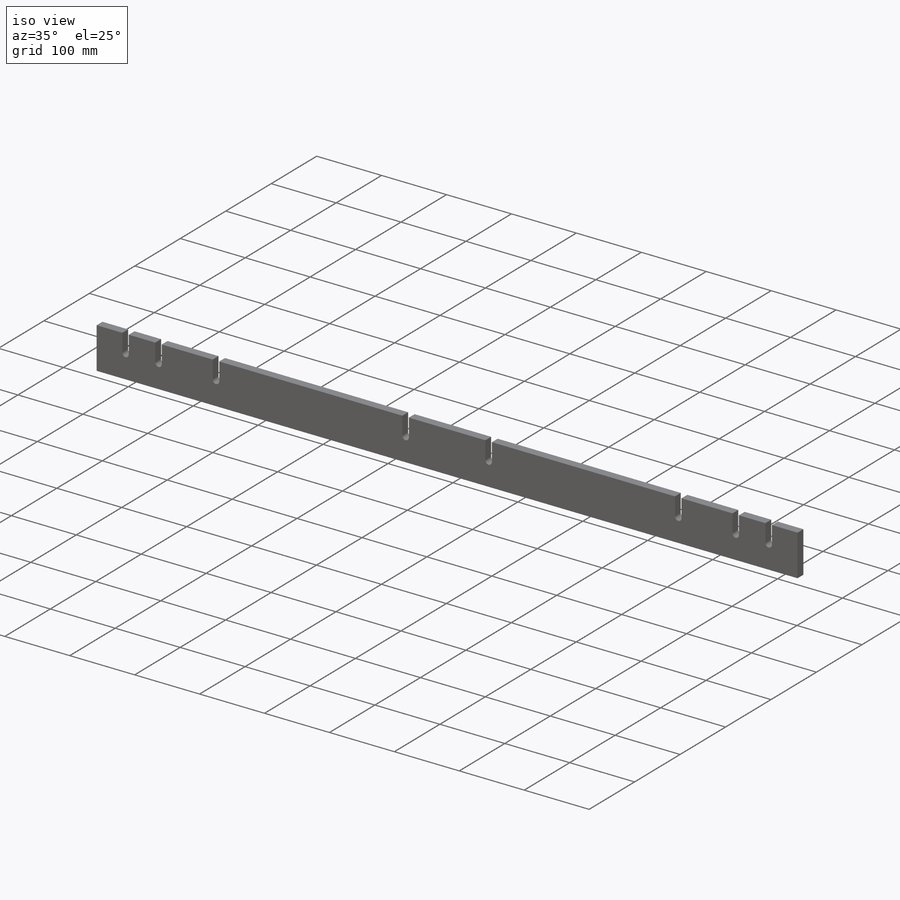
[diagram: iso view]
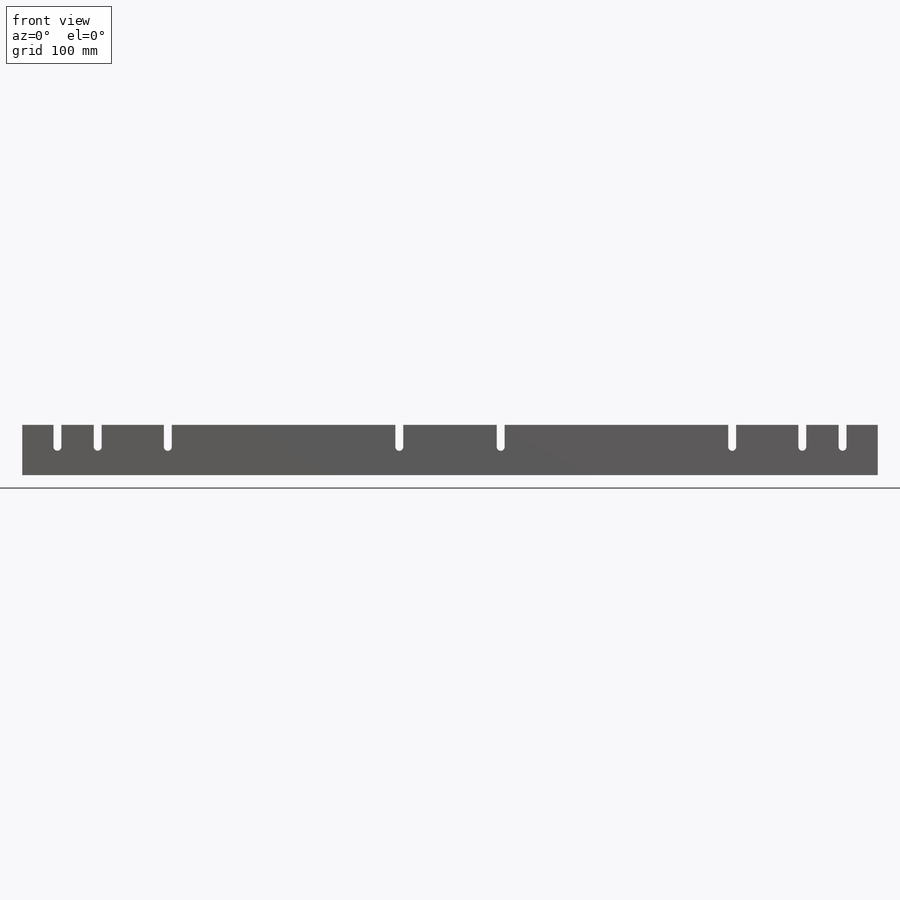
[diagram: front view]
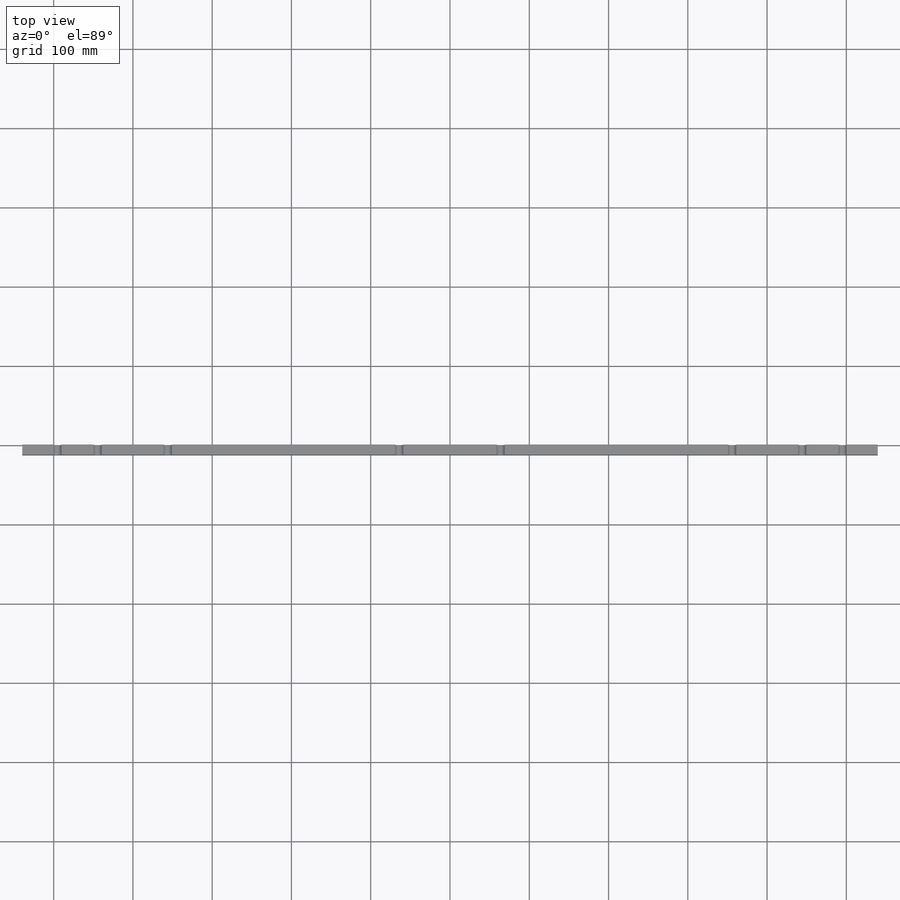
[diagram: top view]
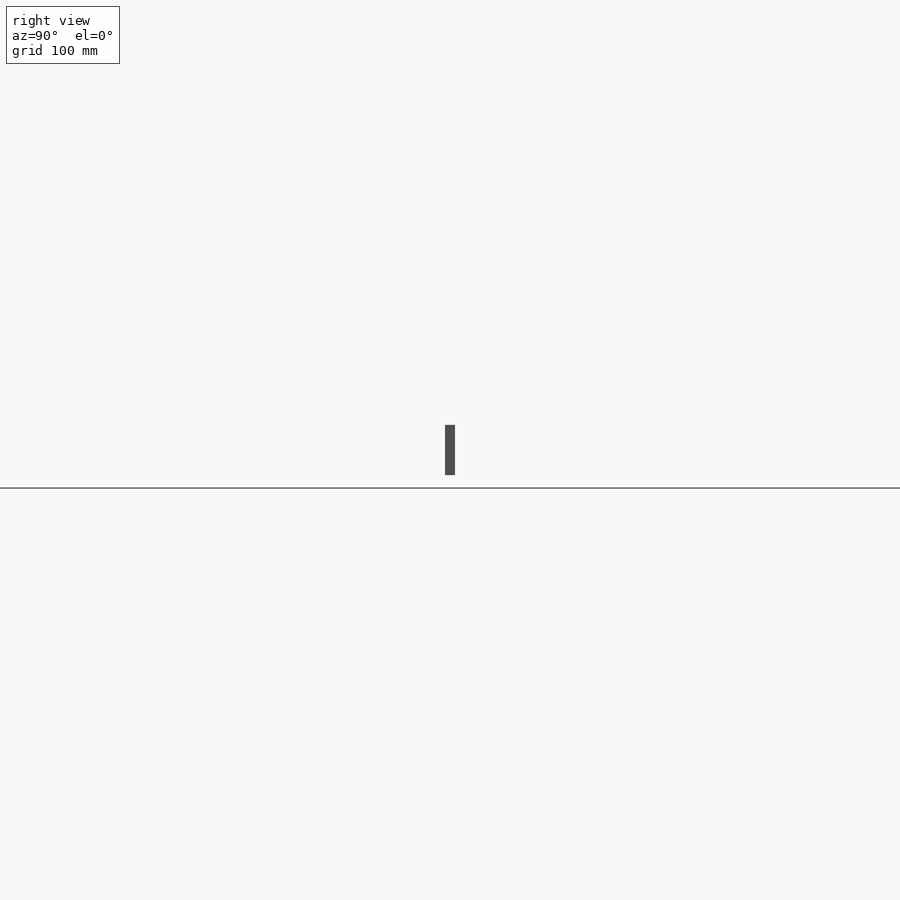
[diagram: right view]
SOLIDWORKS PART (.sldprt)
format: sldprt  version: not decoded by parser v0  size: 230,912 bytes
history: native  units: mm
features: sketch x3, cut_extrude x2, material x1, extrude x1 (+13 scaffold rows collapsed)
feature tree (20):
  scaffold x13  (default folders/planes/origin — collapsed)
  material  "Material <not specified>"
  sketch  "Sketch1"  dims[D1=1028.7mm D2=63.5mm D3=1079.5mm]
  extrude  "Extrude1"  Depth=12.7mm
  sketch  "Sketch4"  dims[D1=10.0mm D2=10.0mm]
  cut_extrude  "Cut-Extrude1"  [1 undecoded]
  sketch  "Sketch6"  dims[c1.D1=9.906mm c1.D5=9.906mm c1.D6=9.906mm c1.D7=9.906mm c2.D1=~1.962313mm c2.D2=444.5mm c2.D3=50.8mm c2.D4=27.686mm c2.D6=~30.499854mm c2.D8=444.5mm c2.D9=50.8mm c2.D10=27.686mm c2.D11=27.686mm c2.D12=~12.106944mm c3.D2=9.906mm]
  cut_extrude  "Cut-Extrude2"  Depth=20.32mm
decode coverage: 5 of 6 modeling features carry decoded parameters
note: ~ marks probable driven/reference dimensions
note: 1 parameter value undecoded
note: suppression state not decoded; provenance and decode notes live in map.json
